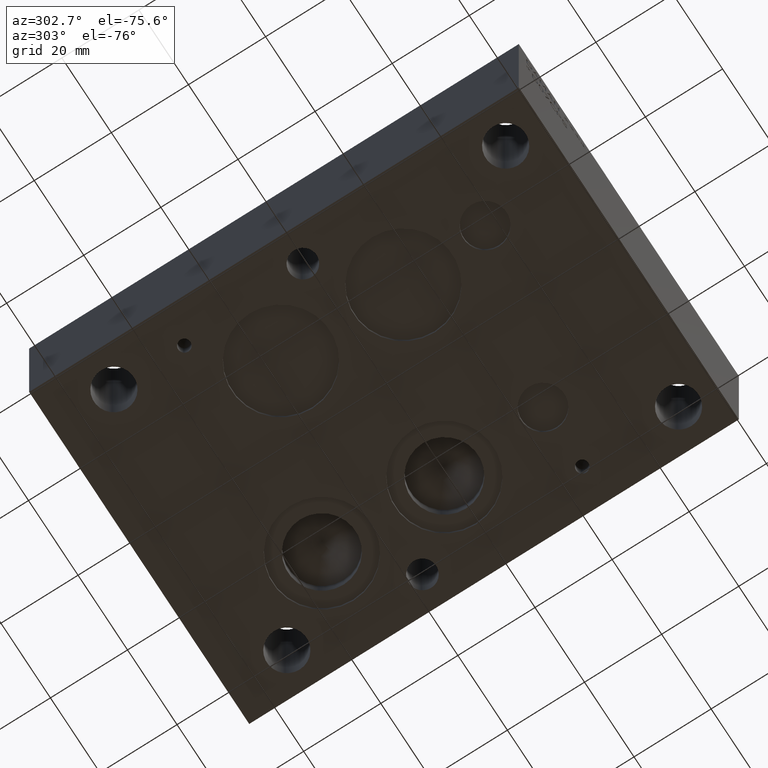
[diagram: clean part render]
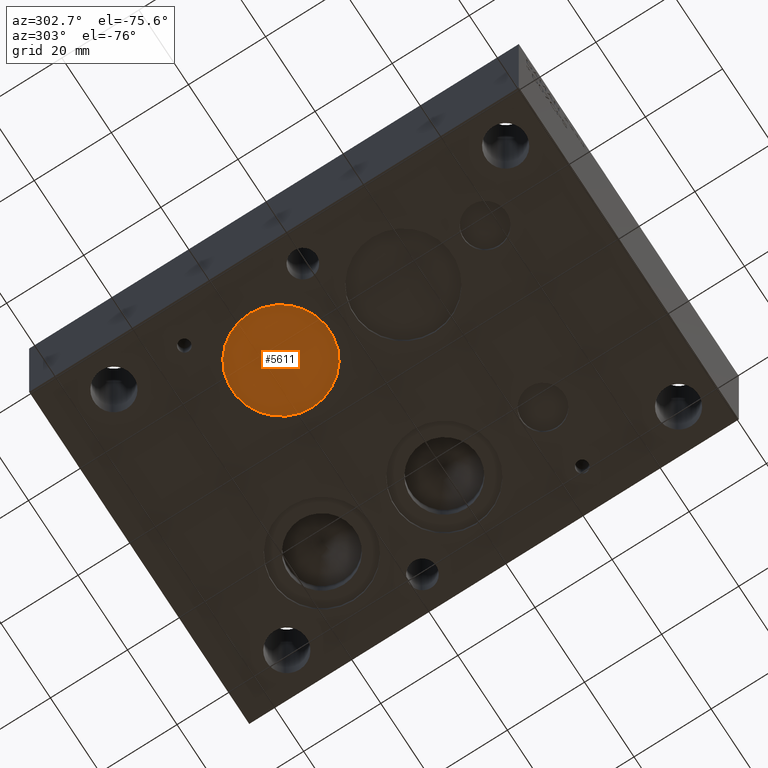
[diagram: same view with one face highlighted and labeled with its STEP entity id]
A machine part, auxiliary view. The second image highlights one B-rep face of the part: STEP entity #5611.
In plain terms, the highlighted planar face has unit normal (0, 0, 1).
Its self-contained STEP definition (entity closure, byte-faithful):
#49=CIRCLE('',#5874,0.5);
#50=CIRCLE('',#5875,0.5);
#473=FACE_OUTER_BOUND('',#787,.T.);
#787=EDGE_LOOP('',(#5000,#5001));
#2687=VERTEX_POINT('',#9706);
#2688=VERTEX_POINT('',#9707);
#3474=EDGE_CURVE('',#2687,#2688,#49,.T.);
#3475=EDGE_CURVE('',#2688,#2687,#50,.T.);
#5000=ORIENTED_EDGE('',*,*,#3474,.T.);
#5001=ORIENTED_EDGE('',*,*,#3475,.T.);
#5332=PLANE('',#5873);
#5611=ADVANCED_FACE('',(#473),#5332,.F.);
#5873=AXIS2_PLACEMENT_3D('',#9705,#6964,#6965);
#5874=AXIS2_PLACEMENT_3D('',#9708,#6966,#6967);
#5875=AXIS2_PLACEMENT_3D('',#9709,#6968,#6969);
#6964=DIRECTION('center_axis',(0.,0.,1.));
#6965=DIRECTION('ref_axis',(1.,0.,0.));
#6966=DIRECTION('center_axis',(0.,0.,-1.));
#6967=DIRECTION('ref_axis',(1.,0.,0.));
#6968=DIRECTION('center_axis',(0.,0.,-1.));
#6969=DIRECTION('ref_axis',(1.,0.,0.));
#9705=CARTESIAN_POINT('Origin',(1.188,3.031,0.04));
#9706=CARTESIAN_POINT('',(1.438,3.031,0.04));
#9707=CARTESIAN_POINT('',(0.438,3.031,0.04));
#9708=CARTESIAN_POINT('Origin',(0.938,3.031,0.04));
#9709=CARTESIAN_POINT('Origin',(0.938,3.031,0.04));